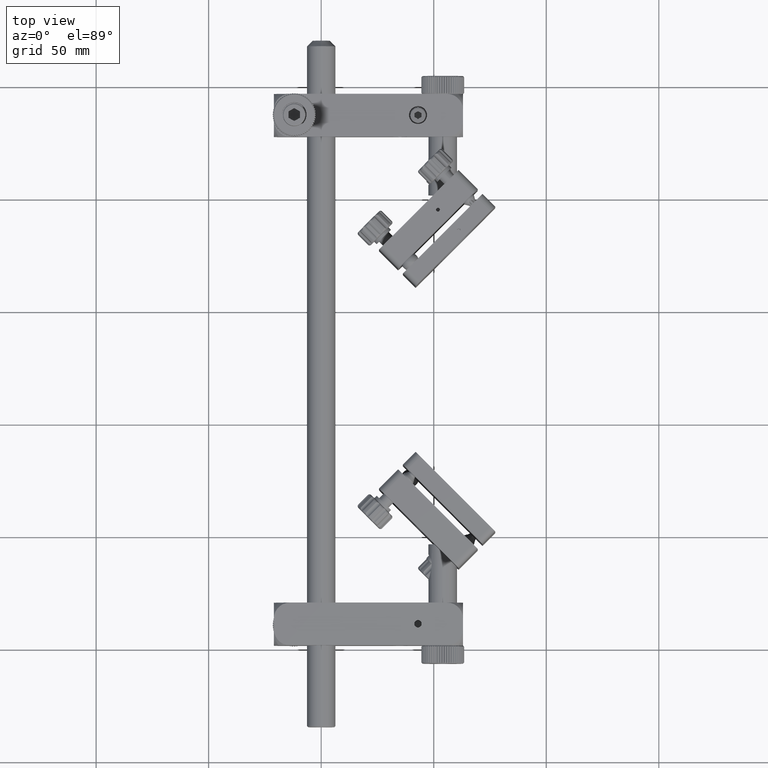
[diagram: clean part render]
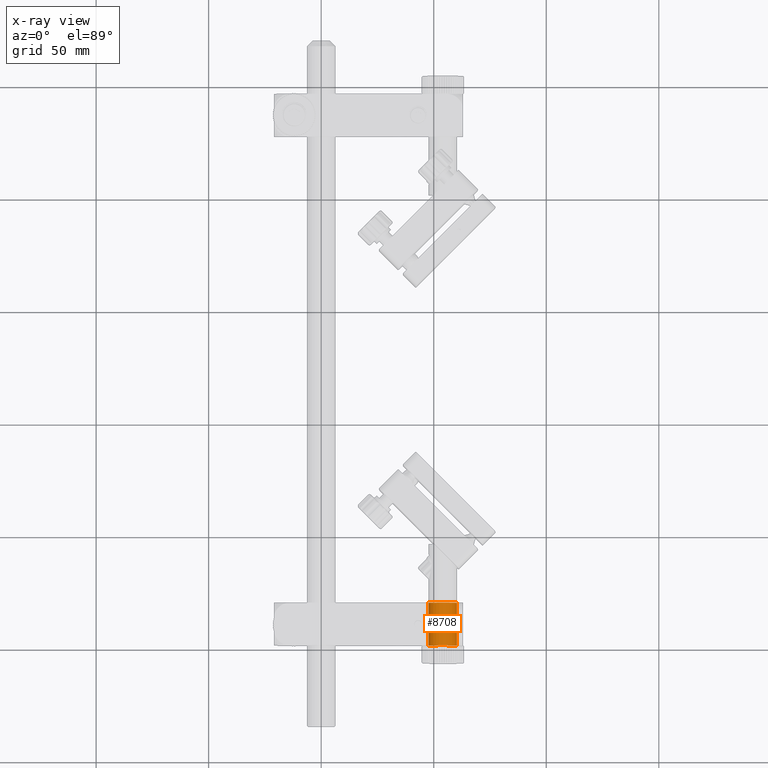
[diagram: x-ray — body ghosted, one internal face saturated and labeled with its STEP entity id]
A machine part, top view, then the same camera in x-ray: the body is ghosted and one INTERNAL B-rep face — a face not visible from any outside direction — is saturated and labeled: STEP entity #8708.
In plain terms, the highlighted cylindrical surface (edge-blend (fillet) strip) has radius 6.35 mm, axis along (0, -1, -0).
Its self-contained STEP definition (entity closure, byte-faithful):
#62 = EDGE_CURVE ( 'NONE', #41578, #61416, #60304, .T. ) ;
#199 = DIRECTION ( 'NONE',  ( 1.220538237113588090E-18, -1.000000000000000000, -3.223279524194503275E-16 ) ) ;
#1801 = VERTEX_POINT ( 'NONE', #22800 ) ;
#2606 = CARTESIAN_POINT ( 'NONE',  ( 53.99999999999995026, 70.47653311057176495, 4.580974328041772213E-14 ) ) ;
#2688 = ORIENTED_EDGE ( 'NONE', *, *, #40586, .F. ) ;
#8708 = ADVANCED_FACE ( 'NONE', ( #22548 ), #51706, .F. ) ;
#9986 = LINE ( 'NONE', #33537, #14157 ) ;
#10645 = CARTESIAN_POINT ( 'NONE',  ( 53.99999999999995026, 51.47653311057175074, 3.968551218444817468E-14 ) ) ;
#10697 = AXIS2_PLACEMENT_3D ( 'NONE', #33966, #15196, #29831 ) ;
#14157 = VECTOR ( 'NONE', #29086, 1000.000000000000000 ) ;
#14730 = AXIS2_PLACEMENT_3D ( 'NONE', #10645, #199, #48718 ) ;
#15196 = DIRECTION ( 'NONE',  ( 1.220538237113588090E-18, -1.000000000000000000, -3.223279524194503275E-16 ) ) ;
#20321 = VERTEX_POINT ( 'NONE', #62583 ) ;
#22548 = FACE_OUTER_BOUND ( 'NONE', #29419, .T. ) ;
#22800 = CARTESIAN_POINT ( 'NONE',  ( 47.69444689182619612, 70.47653311057176495, 0.7500000000000378586 ) ) ;
#25081 = CARTESIAN_POINT ( 'NONE',  ( 47.69444689182619612, 51.47653311057175074, 0.7500000000000320854 ) ) ;
#28490 = ORIENTED_EDGE ( 'NONE', *, *, #53937, .T. ) ;
#29086 = DIRECTION ( 'NONE',  ( 1.220538237113588090E-18, -1.000000000000000000, -3.223279524194503275E-16 ) ) ;
#29419 = EDGE_LOOP ( 'NONE', ( #42338, #2688, #59733, #28490 ) ) ;
#29831 = DIRECTION ( 'NONE',  ( 0.000000000000000000, 0.000000000000000000, -1.000000000000000000 ) ) ;
#32153 = DIRECTION ( 'NONE',  ( 0.000000000000000000, 0.000000000000000000, -1.000000000000000000 ) ) ;
#33537 = CARTESIAN_POINT ( 'NONE',  ( 47.69444689182619612, 70.47653311057176495, 0.7500000000000378586 ) ) ;
#33843 = LINE ( 'NONE', #53142, #43182 ) ;
#33966 = CARTESIAN_POINT ( 'NONE',  ( 53.99999999999995026, 70.47653311057176495, 4.580974328041772213E-14 ) ) ;
#36591 = DIRECTION ( 'NONE',  ( 1.220538237113588090E-18, -1.000000000000000000, -3.223279524194503275E-16 ) ) ;
#40586 = EDGE_CURVE ( 'NONE', #1801, #61416, #9986, .T. ) ;
#41578 = VERTEX_POINT ( 'NONE', #61006 ) ;
#42338 = ORIENTED_EDGE ( 'NONE', *, *, #62, .T. ) ;
#43182 = VECTOR ( 'NONE', #54718, 1000.000000000000000 ) ;
#48718 = DIRECTION ( 'NONE',  ( 0.000000000000000000, 0.000000000000000000, -1.000000000000000000 ) ) ;
#51706 = CYLINDRICAL_SURFACE ( 'NONE', #10697, 6.349999999999995204 ) ;
#53142 = CARTESIAN_POINT ( 'NONE',  ( 60.30555310817373282, 70.47653311057176495, 0.7500000000000365263 ) ) ;
#53937 = EDGE_CURVE ( 'NONE', #20321, #41578, #33843, .T. ) ;
#54718 = DIRECTION ( 'NONE',  ( 1.220538237113588090E-18, -1.000000000000000000, -3.223279524194503275E-16 ) ) ;
#57480 = CIRCLE ( 'NONE', #60555, 6.349999999999995204 ) ;
#58946 = EDGE_CURVE ( 'NONE', #20321, #1801, #57480, .T. ) ;
#59733 = ORIENTED_EDGE ( 'NONE', *, *, #58946, .F. ) ;
#60304 = CIRCLE ( 'NONE', #14730, 6.349999999999995204 ) ;
#60555 = AXIS2_PLACEMENT_3D ( 'NONE', #2606, #36591, #32153 ) ;
#61006 = CARTESIAN_POINT ( 'NONE',  ( 60.30555310817373282, 51.47653311057175074, 0.7500000000000300870 ) ) ;
#61416 = VERTEX_POINT ( 'NONE', #25081 ) ;
#62583 = CARTESIAN_POINT ( 'NONE',  ( 60.30555310817373282, 70.47653311057176495, 0.7500000000000365263 ) ) ;